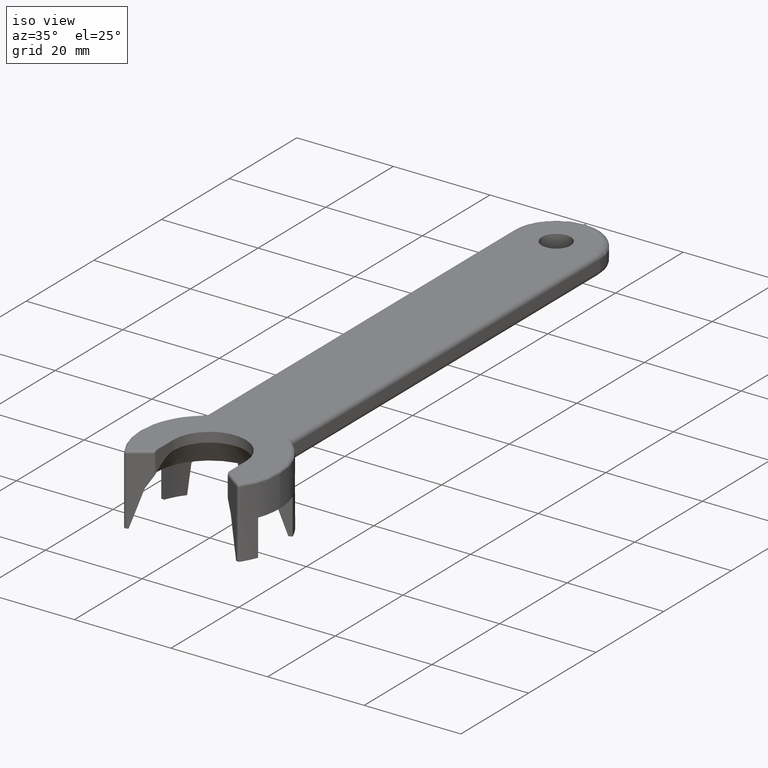
[diagram: clean part render]
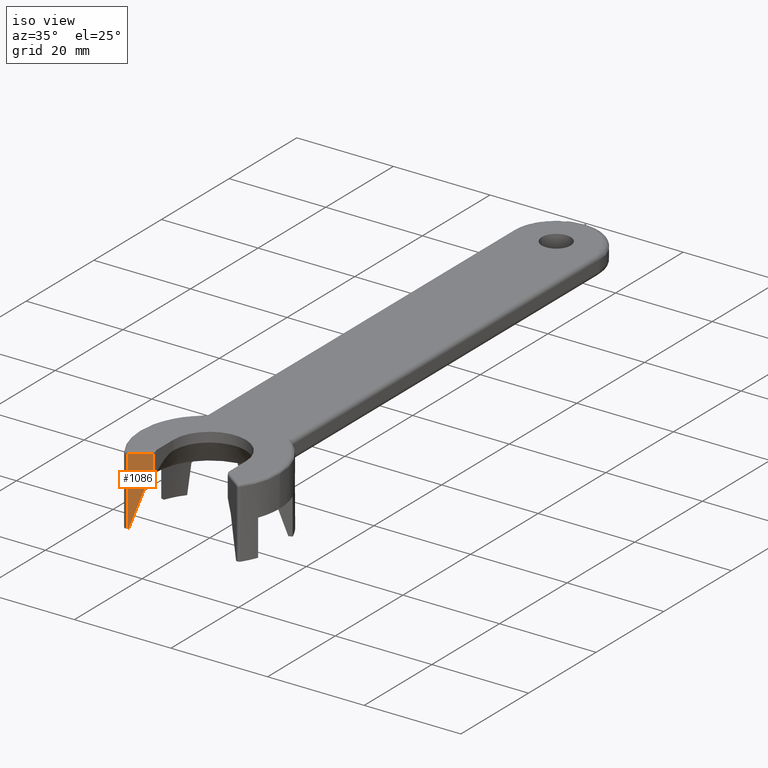
[diagram: same view with one face highlighted and labeled with its STEP entity id]
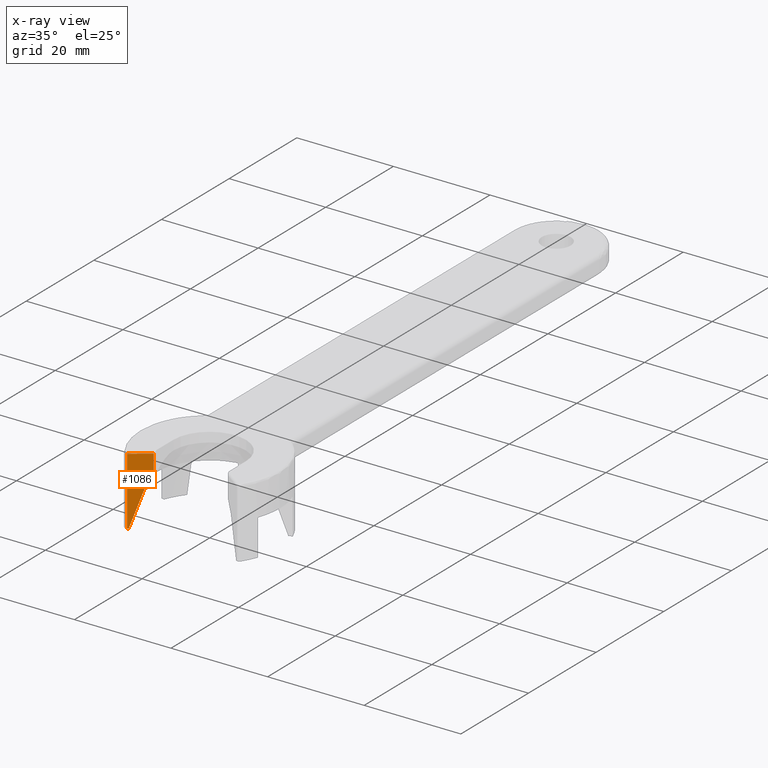
[diagram: x-ray of the same camera — body ghosted, the highlighted face saturated]
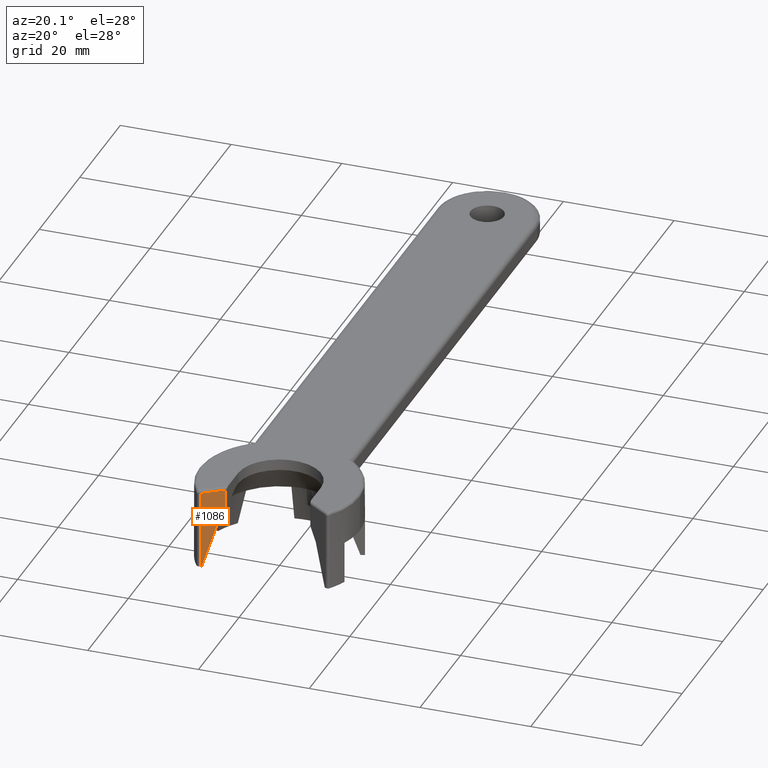
[diagram: same view with one face highlighted and labeled with its STEP entity id]
A machine part, iso view. The second image highlights one B-rep face of the part: STEP entity #1086.
The next image is the same camera in x-ray: the body ghosted, the highlighted face saturated — about 0% of this face is hidden behind the body in this view.
A second angle (auxiliary view) of the same face is appended — the face is thin or edge-on in the first view.
In plain terms, the highlighted planar face has unit normal (-0.5878, 0.809, 0).
Its self-contained STEP definition (entity closure, byte-faithful):
#90 = EDGE_CURVE ( 'NONE', #2533, #1336, #1563, .T. ) ;
#98 = EDGE_LOOP ( 'NONE', ( #1188, #120, #305, #966, #1988, #364 ) ) ;
#120 = ORIENTED_EDGE ( 'NONE', *, *, #90, .F. ) ;
#129 = VERTEX_POINT ( 'NONE', #254 ) ;
#135 = CARTESIAN_POINT ( 'NONE',  ( -7.706107374000000100, -5.598814731999999200, -7.500000000000000900 ) ) ;
#181 = CARTESIAN_POINT ( 'NONE',  ( -7.475329753377203600, -5.431144981964763500, -4.485000000000000300 ) ) ;
#254 = CARTESIAN_POINT ( 'NONE',  ( -8.900026444793319100, -6.466247718791950500, -6.999999999999957400 ) ) ;
#305 = ORIENTED_EDGE ( 'NONE', *, *, #1167, .F. ) ;
#320 = CARTESIAN_POINT ( 'NONE',  ( -7.706107374000000100, -5.598814731999999200, -0.5000000000000000000 ) ) ;
#322 = CARTESIAN_POINT ( 'NONE',  ( -11.31901225075373000, -8.223743775361583600, -0.5000000001025518600 ) ) ;
#323 = LINE ( 'NONE', #2396, #794 ) ;
#334 = CARTESIAN_POINT ( 'NONE',  ( -7.706107372471564100, -5.598814733900466600, -4.892388963502441800 ) ) ;
#361 = VECTOR ( 'NONE', #777, 1000.000000000000100 ) ;
#364 = ORIENTED_EDGE ( 'NONE', *, *, #2181, .T. ) ;
#390 = FACE_OUTER_BOUND ( 'NONE', #98, .T. ) ;
#425 = VECTOR ( 'NONE', #2531, 1000.000000000000000 ) ;
#430 = LINE ( 'NONE', #923, #1995 ) ;
#737 = VECTOR ( 'NONE', #2070, 1000.000000000000100 ) ;
#777 = DIRECTION ( 'NONE',  ( -0.4640330844081579900, -0.3371397705513137800, -0.8191520443039002100 ) ) ;
#794 = VECTOR ( 'NONE', #925, 1000.000000000000100 ) ;
#923 = CARTESIAN_POINT ( 'NONE',  ( -11.31901225089528900, -8.223743775217640100, -7.500000000000000900 ) ) ;
#925 = DIRECTION ( 'NONE',  ( -0.2767001082765293600, -0.2010343963617451900, -0.9396926207857682100 ) ) ;
#934 = DIRECTION ( 'NONE',  ( 0.0000000000000000000, 0.0000000000000000000, -1.000000000000000000 ) ) ;
#966 = ORIENTED_EDGE ( 'NONE', *, *, #2435, .F. ) ;
#1086 = ADVANCED_FACE ( 'NONE', ( #390 ), #1130, .F. ) ;
#1130 = PLANE ( 'NONE',  #2410 ) ;
#1167 = EDGE_CURVE ( 'NONE', #129, #2533, #323, .T. ) ;
#1188 = ORIENTED_EDGE ( 'NONE', *, *, #1706, .T. ) ;
#1238 = CARTESIAN_POINT ( 'NONE',  ( -11.31901225073688100, -8.223743775318959900, -14.49999999999999800 ) ) ;
#1269 = CARTESIAN_POINT ( 'NONE',  ( -9.512559812000001000, -6.911279253499999200, -14.50000000000000000 ) ) ;
#1336 = VERTEX_POINT ( 'NONE', #1238 ) ;
#1350 = DIRECTION ( 'NONE',  ( 0.0000000000000000000, 0.0000000000000000000, -1.000000000000000000 ) ) ;
#1395 = LINE ( 'NONE', #135, #1854 ) ;
#1417 = CARTESIAN_POINT ( 'NONE',  ( -11.10846223310545100, -8.070770237162996400, -14.50000000000006800 ) ) ;
#1563 = LINE ( 'NONE', #1269, #425 ) ;
#1706 = EDGE_CURVE ( 'NONE', #1780, #1336, #430, .T. ) ;
#1750 = LINE ( 'NONE', #1753, #737 ) ;
#1753 = CARTESIAN_POINT ( 'NONE',  ( -9.250221097343022300, -6.720679021375987700, -0.5000000002051032700 ) ) ;
#1780 = VERTEX_POINT ( 'NONE', #322 ) ;
#1792 = EDGE_CURVE ( 'NONE', #1982, #1800, #1395, .T. ) ;
#1800 = VERTEX_POINT ( 'NONE', #334 ) ;
#1851 = LINE ( 'NONE', #181, #361 ) ;
#1854 = VECTOR ( 'NONE', #1350, 1000.000000000000000 ) ;
#1982 = VERTEX_POINT ( 'NONE', #2147 ) ;
#1988 = ORIENTED_EDGE ( 'NONE', *, *, #1792, .F. ) ;
#1995 = VECTOR ( 'NONE', #2151, 1000.000000000000000 ) ;
#2070 = DIRECTION ( 'NONE',  ( -0.8090169944273423200, -0.5877852522203577100, -0.0000000000000000000 ) ) ;
#2147 = CARTESIAN_POINT ( 'NONE',  ( -7.706107373774683500, -5.598814732232161100, -0.4999999999624896700 ) ) ;
#2151 = DIRECTION ( 'NONE',  ( -0.0000000000000000000, -0.0000000000000000000, -1.000000000000000000 ) ) ;
#2181 = EDGE_CURVE ( 'NONE', #1982, #1780, #1750, .T. ) ;
#2396 = CARTESIAN_POINT ( 'NONE',  ( -10.00424433805434000, -7.268508979209378200, -10.75000000000000000 ) ) ;
#2410 = AXIS2_PLACEMENT_3D ( 'NONE', #320, #2624, #934 ) ;
#2435 = EDGE_CURVE ( 'NONE', #1800, #129, #1851, .T. ) ;
#2531 = DIRECTION ( 'NONE',  ( -0.8090169942739954300, -0.5877852524314216600, 0.0000000000000000000 ) ) ;
#2533 = VERTEX_POINT ( 'NONE', #1417 ) ;
#2624 = DIRECTION ( 'NONE',  ( -0.5877852524314217700, 0.8090169942739953200, 0.0000000000000000000 ) ) ;